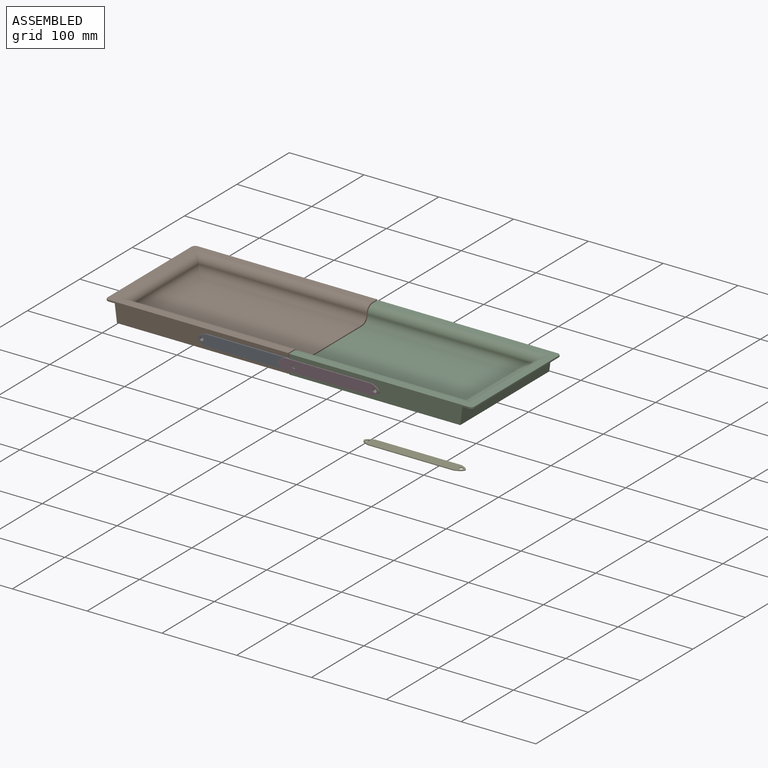
[diagram: assembled view]
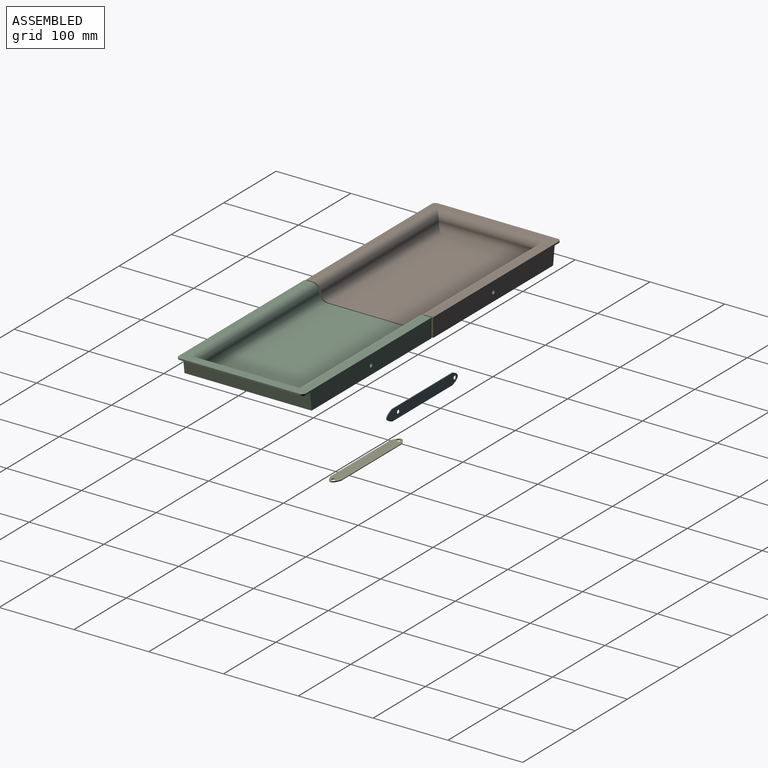
[diagram: assembled view, second angle]
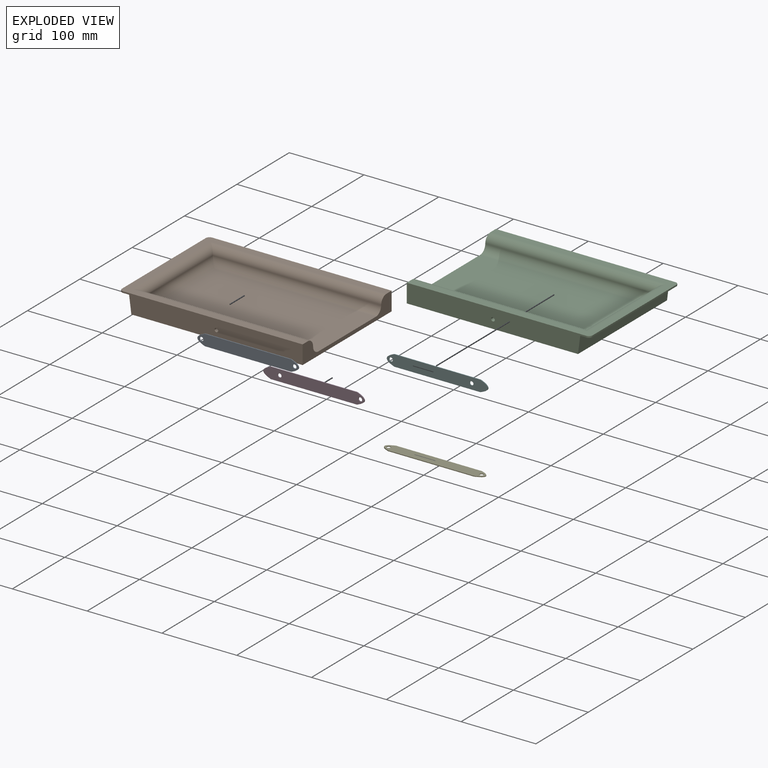
[diagram: exploded view]
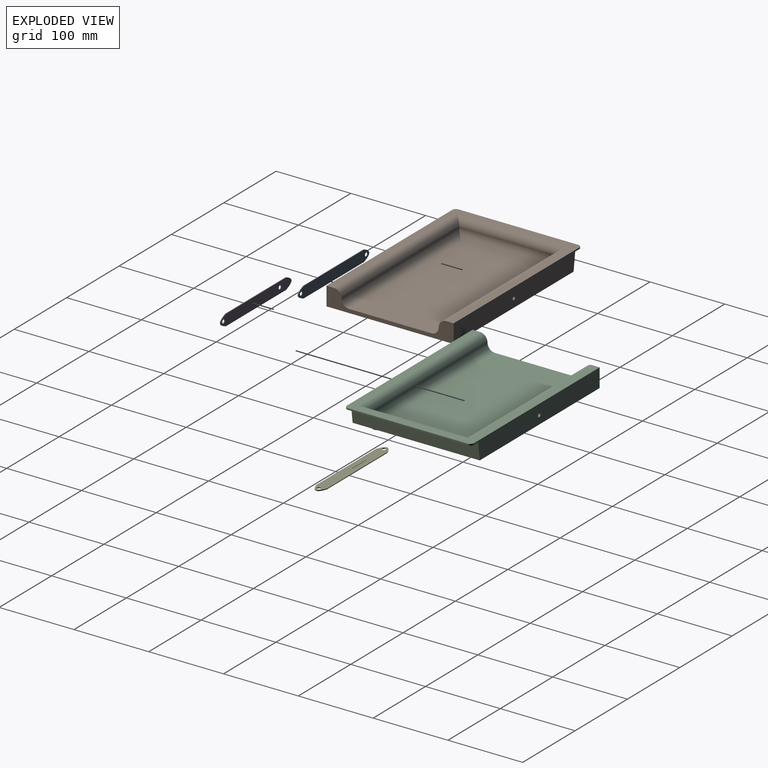
[diagram: exploded view, second angle]
ASSEMBLY  parts=6 mates=3
PART A: 8 faces, bbox 142.9x15x1 mm
  f0: plane 115.35x1mm, normal (0,1,0), area 115.3mm2, adj f1,f4,f6,f7
  f1: extruded ~15x10mm, area 26.2mm2, adj f0,f2,f6,f7
  f2: plane 115.35x1mm, normal (0,-1,0), area 115.3mm2, adj f1,f4,f6,f7
  f3: cylinder r=2.5mm len=5mm, axis (0,0,-1), area 15.7mm2, adj f6,f7
  f4: extruded ~15x10mm, area 26.2mm2, adj f0,f2,f6,f7
  f5: cylinder r=2.5mm len=5mm, axis (0,0,-1), area 15.7mm2, adj f6,f7
  f6: plane 142.85x15mm, normal (0,0,1), area 1891mm2, adj f0,f1,f2,f3,f4,f5
  f7: plane 142.85x15mm, normal (0,0,-1), area 1891mm2, adj f0,f1,f2,f3,f4,f5
PART B: 21 faces, bbox 245x170x25 mm
  f0: plane 240x25mm, normal (0,1,0), area 5761.9mm2, adj f2,f3,f5,f7,f8,f15,f17
  f1: plane 160x2mm, normal (-1,0,0), area 320mm2, adj f3,f8,f15,f16
  f2: plane 229x170mm, normal (0,0,-1), area 38930mm2, adj f0,f4,f5,f7
  f3: plane 245x170mm, normal (0,0,1), area 6389.3mm2, adj f0,f1,f4,f5,f10,f12,f14,f15
  f4: plane 240x25mm, normal (0,-1,0), area 5761.9mm2, adj f2,f3,f5,f7,f8,f16,f19
  f5: plane 170x25mm, normal (1,0,0), area 1650mm2, adj f0,f2,f3,f4,f6,f9,f10,f13
  f6: plane 215x110mm, normal (0,0,1), area 23650mm2, adj f5,f9,f11,f13
  f7: plane 170x23mm, normal (-0.99,0,-0.13), area 3943.1mm2, adj f0,f2,f4,f8
  f8: plane 170x13mm, normal (0,0,-1), area 2199.3mm2, adj f0,f1,f4,f7,f15,f16
  f9: cylinder r=10mm len=225mm, axis (-1,0,0), area 3477.2mm2, adj f5,f6,f10,f11
  f10: cylinder r=10mm len=235mm, axis (1,0,0), area 3591.4mm2, adj f3,f5,f9,f12
  f11: cylinder r=10mm len=130mm, axis (0,-1,0), area 1927.9mm2, adj f6,f9,f12,f13
  f12: cylinder r=10mm len=150mm, axis (0,1,0), area 2156.2mm2, adj f3,f10,f11,f14
  f13: cylinder r=10mm len=225mm, axis (1,0,0), area 3477.2mm2, adj f5,f6,f11,f14
  f14: cylinder r=10mm len=235mm, axis (-1,0,0), area 3591.4mm2, adj f3,f5,f12,f13
  f15: cylinder r=5mm len=5mm, axis (0,0,1), area 15.7mm2, adj f0,f1,f3,f8
  f16: cylinder r=5mm len=5mm, axis (0,0,-1), area 15.7mm2, adj f1,f3,f4,f8
  f17: cylinder r=2.5mm len=5mm, axis (0,1,0), area 78.5mm2, adj f0,f18
  f18: plane 5x5mm, normal (0,1,0), area 19.6mm2, adj f17
  f19: cylinder r=2.5mm len=5mm, axis (0,-1,0), area 78.5mm2, adj f4,f20
  f20: plane 5x5mm, normal (0,-1,0), area 19.6mm2, adj f19
PART C: 21 faces, bbox 245x170x25 mm
  f0: plane 240x25mm, normal (0,1,0), area 5761.9mm2, adj f2,f3,f5,f7,f8,f15,f17
  f1: plane 160x2mm, normal (1,0,0), area 320mm2, adj f3,f8,f15,f16
  f2: plane 229x170mm, normal (0,0,-1), area 38930mm2, adj f0,f4,f5,f7
  f3: plane 245x170mm, normal (0,0,1), area 6389.3mm2, adj f0,f1,f4,f5,f10,f12,f14,f15
  f4: plane 240x25mm, normal (0,-1,0), area 5761.9mm2, adj f2,f3,f5,f7,f8,f16,f19
  f5: plane 170x25mm, normal (-1,0,0), area 1650mm2, adj f0,f2,f3,f4,f6,f9,f10,f13
  f6: plane 215x110mm, normal (0,0,1), area 23650mm2, adj f5,f9,f11,f13
  f7: plane 170x23mm, normal (0.99,0,-0.13), area 3943.1mm2, adj f0,f2,f4,f8
  f8: plane 170x13mm, normal (0,0,-1), area 2199.3mm2, adj f0,f1,f4,f7,f15,f16
  f9: cylinder r=10mm len=225mm, axis (1,0,0), area 3477.2mm2, adj f5,f6,f10,f11
  f10: cylinder r=10mm len=235mm, axis (-1,0,0), area 3591.4mm2, adj f3,f5,f9,f12
  f11: cylinder r=10mm len=130mm, axis (0,-1,0), area 1927.9mm2, adj f6,f9,f12,f13
  f12: cylinder r=10mm len=150mm, axis (0,1,0), area 2156.2mm2, adj f3,f10,f11,f14
  f13: cylinder r=10mm len=225mm, axis (-1,0,0), area 3477.2mm2, adj f5,f6,f11,f14
  f14: cylinder r=10mm len=235mm, axis (1,0,0), area 3591.4mm2, adj f3,f5,f12,f13
  f15: cylinder r=5mm len=5mm, axis (0,0,1), area 15.7mm2, adj f0,f1,f3,f8
  f16: cylinder r=5mm len=5mm, axis (0,0,-1), area 15.7mm2, adj f1,f3,f4,f8
  f17: cylinder r=2.5mm len=5mm, axis (0,1,0), area 78.5mm2, adj f0,f18
  f18: plane 5x5mm, normal (0,1,0), area 19.6mm2, adj f17
  f19: cylinder r=2.5mm len=5mm, axis (0,-1,0), area 78.5mm2, adj f4,f20
  f20: plane 5x5mm, normal (0,-1,0), area 19.6mm2, adj f19
PART D: 8 faces, bbox 142.9x15x1 mm
  f0: extruded ~15x9.91mm, area 26mm2, adj f1,f5,f6,f7
  f1: plane 115.35x1mm, normal (0,-1,0), area 115.4mm2, adj f0,f2,f6,f7
  f2: extruded ~15x10.09mm, area 26.3mm2, adj f1,f5,f6,f7
  f3: cylinder r=2.5mm len=5mm, axis (0,0,-1), area 15.7mm2, adj f6,f7
  f4: cylinder r=2.5mm len=5mm, axis (0,0,-1), area 15.7mm2, adj f6,f7
  f5: plane 115.35x1mm, normal (0,1,0), area 115.4mm2, adj f0,f2,f6,f7
  f6: plane 142.85x15mm, normal (0,0,1), area 1891mm2, adj f0,f1,f2,f3,f4,f5
  f7: plane 142.85x15mm, normal (0,0,-1), area 1891mm2, adj f0,f1,f2,f3,f4,f5
PART E: same geometry as A
PART F: same geometry as D
PLACE A rot(axis=(-1,0,0),90deg) t=(-248.96,-112.81,67.86)mm
PLACE B t=(-202.89,-111.81,138.37)mm
PLACE C t=(-201.39,-112.81,138.37)mm
PLACE D rot(axis=(0,0.71,0.71),180deg) t=(-187.23,-113.81,296.72)mm
PLACE E t=(-120.16,103.36,8.94)mm
PLACE F rot(axis=(1,0,0),90deg) t=(-120.89,73.71,234.13)mm
MATE revolute A.f5 <-> B.f17  axis (0,-1,0) through (-318.14,-111.81,149.87)mm
MATE revolute D.f3 <-> C.f19  axis (0,1,0) through (-85.94,-112.81,149.87)mm
MATE revolute D.f4 <-> A.f3  axis (0,-1,0) through (-193.79,-112.81,149.87)mm
